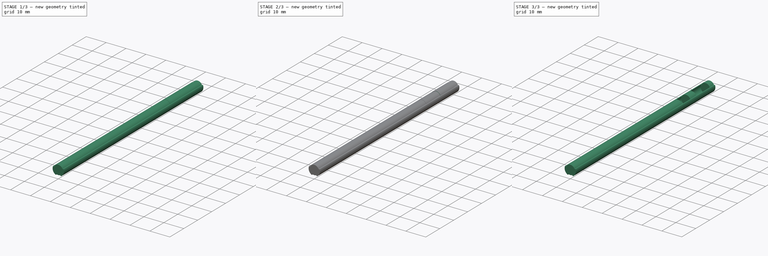
[diagram: build sequence overview — one tinted view per stage of 3, left to right]
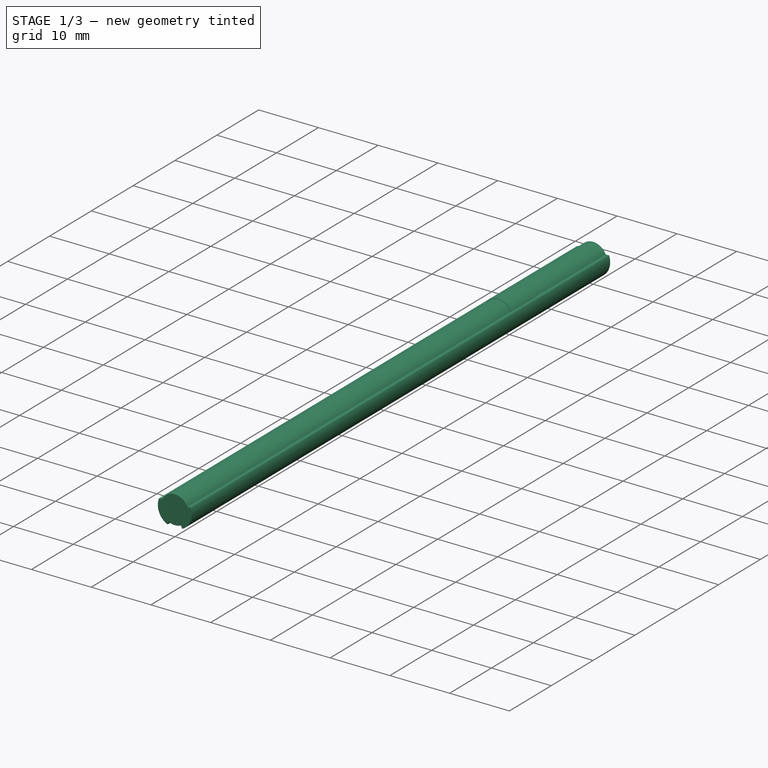
[diagram: stage 1 of 3 — iso view after this stage's code; geometry added in this stage tinted green]
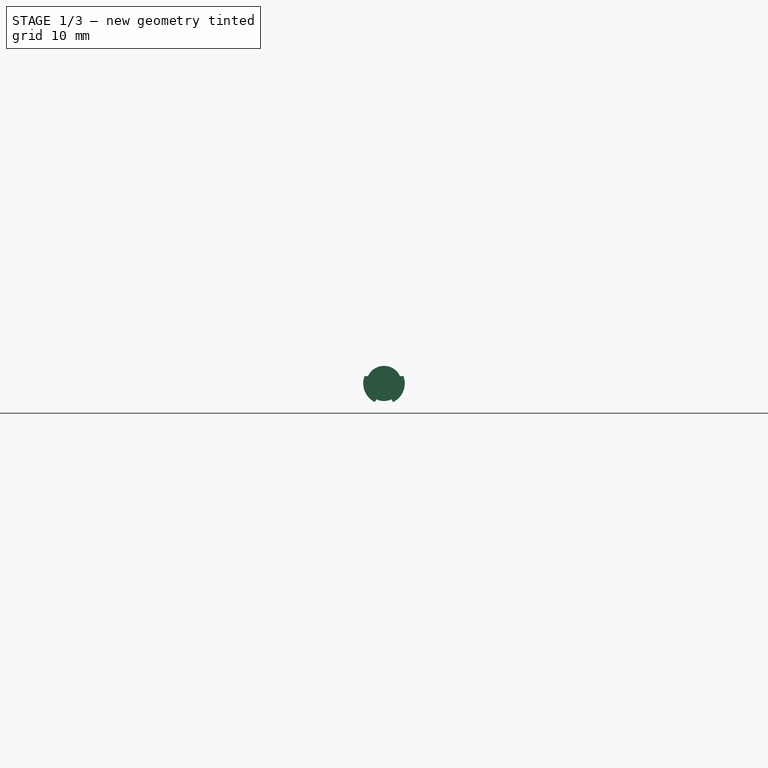
[diagram: stage 1 of 3 — front view after this stage's code; geometry added in this stage tinted green]
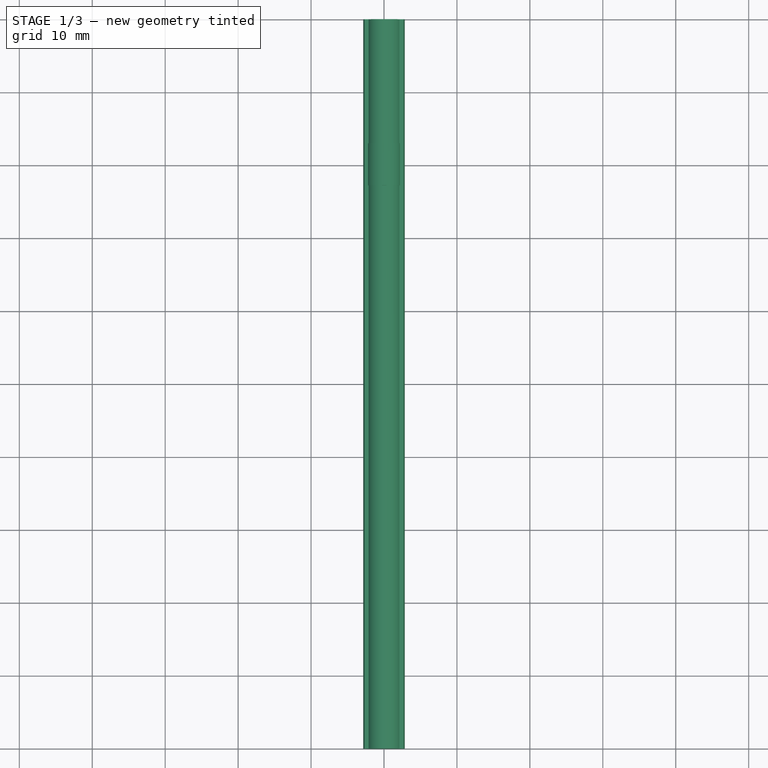
[diagram: stage 1 of 3 — top view after this stage's code; geometry added in this stage tinted green]
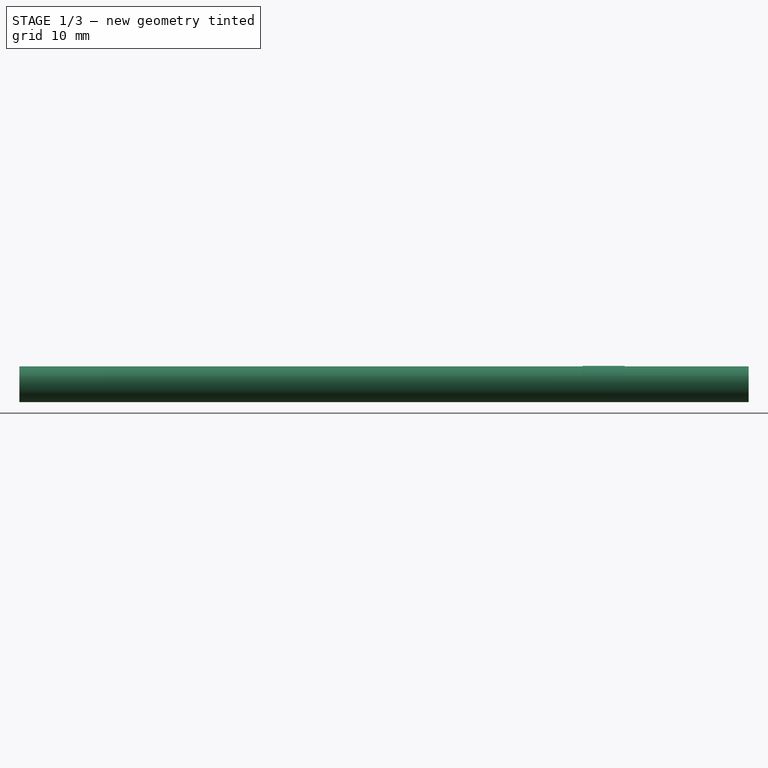
[diagram: stage 1 of 3 — right view after this stage's code; geometry added in this stage tinted green]
FCSTD DOCUMENT  (FreeCAD 1.0R39285 (Git))
Label: Pin
License: All rights reserved
LicenseURL: https://en.wikipedia.org/wiki/All_rights_reserved
objects: Part::Cylinder×2, Part::Cut×2, Sketcher::SketchObject×1, PartDesign::Pad×1, PartDesign::Body×1
note: 10 computed .brp shape members not serialized (recipe doc carries the construction recipe); baked Part::Feature solids carry a one-line shape summary decoded from their .brp

FEATURE [Sketcher::SketchObject] Sketch
  ArcFitTolerance = 1e-06
  AttachmentSupport = -> [XZ_Plane]
  FullyConstrained = true
  MakeInternals = false
  MapMode = 5
  Placement = pos=(0,0,0) rot=(1,0,0;1.5708rad)
  sketch-geometry (13):
    g0: ArcOfCircle CenterX=0 CenterY=0 CenterZ=0 NormalX=0 NormalY=0 NormalZ=1 AngleXU=0 Radius=2.3368 StartAngle=0.446014 EndAngle=2.69558
    g1: Circle [constr] CenterX=0 CenterY=0 CenterZ=0 NormalX=0 NormalY=0 NormalZ=1 AngleXU=0 Radius=2.3368
    g2: Circle [constr] CenterX=0 CenterY=0 CenterZ=0 NormalX=0 NormalY=0 NormalZ=1 AngleXU=0 Radius=2.8448
    g3: ArcOfCircle CenterX=0 CenterY=0 CenterZ=0 NormalX=0 NormalY=0 NormalZ=1 AngleXU=0 Radius=2.8448 StartAngle=5.16219 EndAngle=6.6454
    g4: ArcOfCircle CenterX=0 CenterY=0 CenterZ=0 NormalX=0 NormalY=0 NormalZ=1 AngleXU=0 Radius=2.8448 StartAngle=2.77938 EndAngle=4.26259
    g5: ArcOfCircle CenterX=0 CenterY=0 CenterZ=0 NormalX=0 NormalY=0 NormalZ=1 AngleXU=0 Radius=2.3368 StartAngle=4.26259 EndAngle=5.16219
    g6: LineSegment StartX=-2.66022 StartY=1.00803 StartZ=0 EndX=-2.1082 EndY=1.00803 EndZ=0
    g7: LineSegment StartX=-1.016 StartY=-2.10437 StartZ=0 EndX=-1.23687 EndY=-2.56184 EndZ=0
    g8: LineSegment StartX=1.23687 StartY=-2.56184 StartZ=0 EndX=1.016 EndY=-2.10437 EndZ=0
    g9: LineSegment StartX=2.66022 StartY=1.00803 StartZ=0 EndX=2.1082 EndY=1.00803 EndZ=0
    g10: LineSegment [constr] StartX=-1.016 StartY=-2.10437 StartZ=0 EndX=1.016 EndY=-2.10437 EndZ=0
    g11: LineSegment [constr] StartX=-2.1082 StartY=1.00803 StartZ=0 EndX=2.1082 EndY=1.00803 EndZ=0
    g12: GeomPoint [constr] X=2.3368 Y=0 Z=0
  constraints (34):
    c: Coincident(g0,g-1)
    c: Radius(g0) = 2.3368
    c: Coincident(g1,g0)
    c: Equal(g1,g0)
    c: Coincident(g2,g0)
    c: Radius(g2) = 2.8448
    c: Coincident(g3,g0)
    c: PointOnObject(g3,g2)
    c: Coincident(g4,g0)
    c: PointOnObject(g4,g2)
    c: PointOnObject(g7,g1)
    c: Coincident(g5,g0)
    c: Coincident(g6,g4)
    c: Coincident(g6,g0)
    c: Coincident(g7,g4)
    c: Coincident(g8,g3)
    c: Coincident(g8,g5)
    c: Coincident(g9,g3)
    c: Coincident(g9,g0)
    c: Horizontal(g9)
    c: Horizontal(g6)
    c: Coincident(g5,g7)
    c: Perpendicular(g5,g8)
    c: Perpendicular(g5,g7)
    c: Coincident(g10,g5)
    c: Coincident(g10,g5)
    c: Horizontal(g10)
    c: Coincident(g11,g0)
    c: Coincident(g11,g0)
    c: Horizontal(g11)
    c: PointOnObject(g12,g-1)
    c: PointOnObject(g12,g1)
    c: DistanceX(g10,g10) = 2.032
    c: DistanceX(g0,g12) = 0.2286
FEATURE [PartDesign::Pad] Pad
  Direction = (0,-1,2e-16)
  Length = 100
  Length2 = 10
  Placement = pos=(0,0,0) rot=(1,0,0;1.5708rad)
  Profile = -> Sketch
  ReferenceAxis = -> Sketch [N_Axis]
  Refine = true
  Suppressed = false
  Type = 0
FEATURE [Part::Cylinder] Cylinder001
  Angle = 360
  AttacherType = Attacher::AttachEngine3D
  FirstAngle = 0
  Height = 5.78
  Placement = pos=(0,-17,0) rot=(1,0,0;1.5708rad)
  Radius = 2.413
  SecondAngle = 0
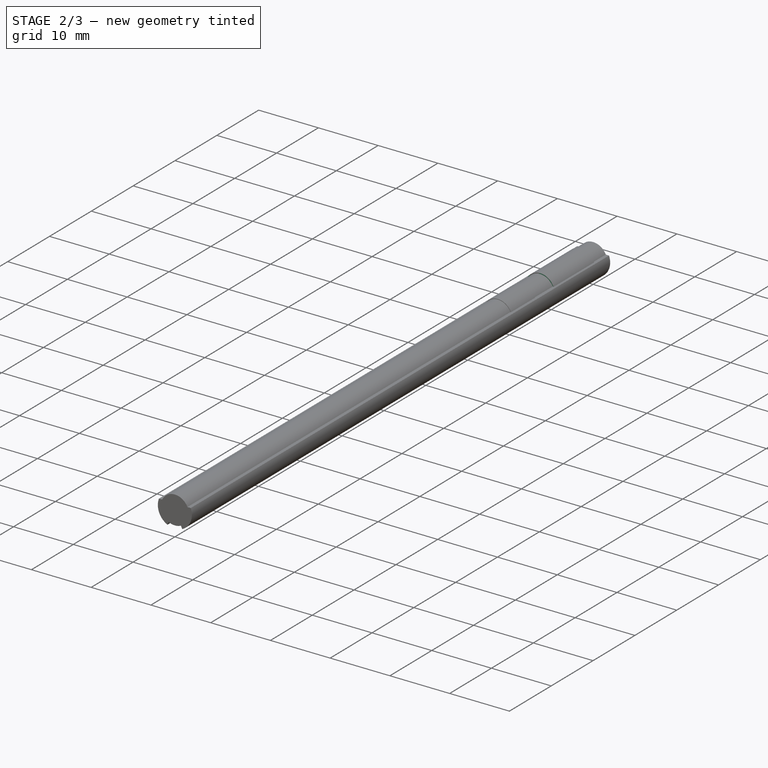
[diagram: stage 2 of 3 — iso view after this stage's code; geometry added in this stage tinted green]
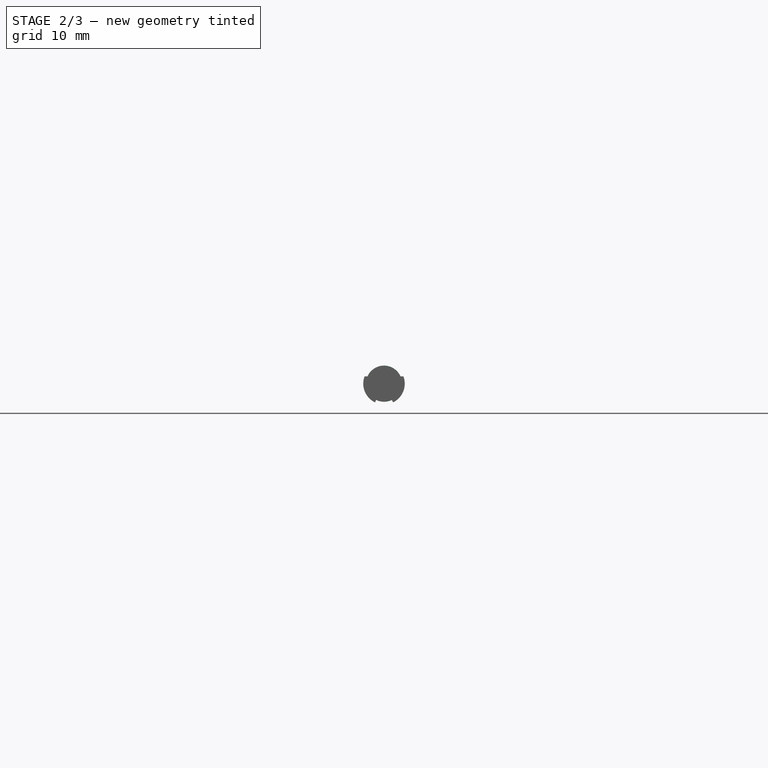
[diagram: stage 2 of 3 — front view after this stage's code; geometry added in this stage tinted green]
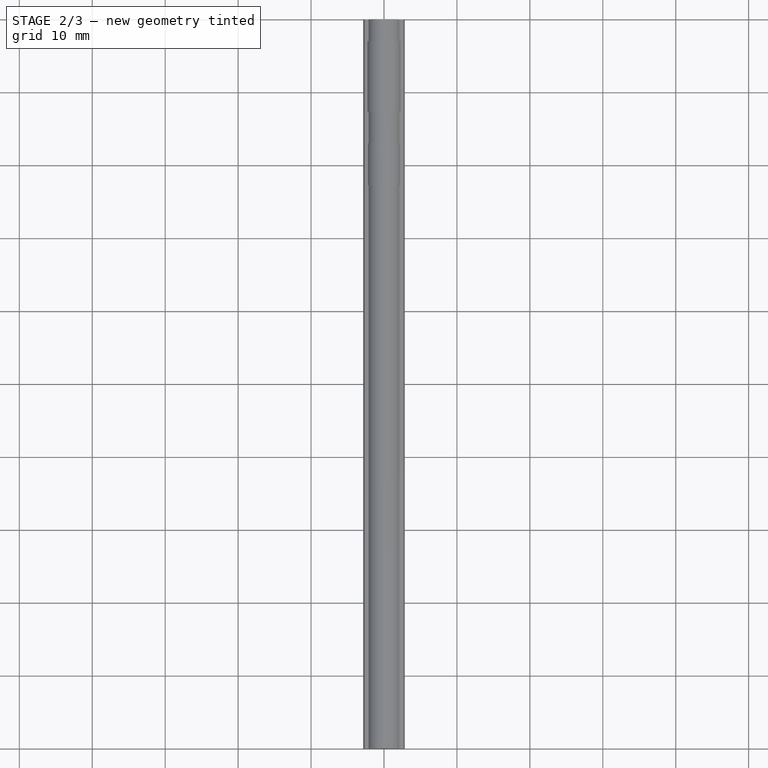
[diagram: stage 2 of 3 — top view after this stage's code; geometry added in this stage tinted green]
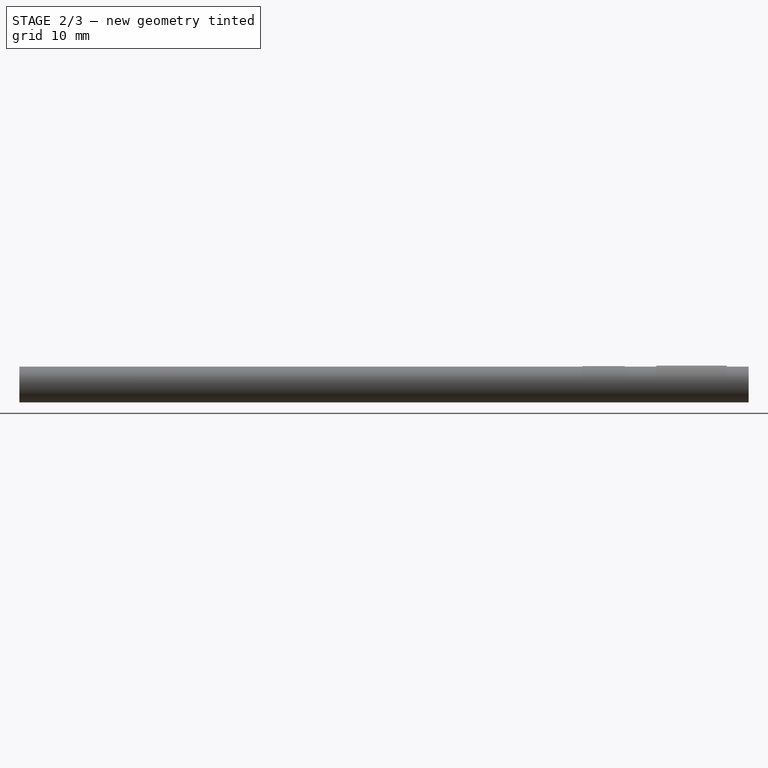
[diagram: stage 2 of 3 — right view after this stage's code; geometry added in this stage tinted green]
FEATURE [Part::Cylinder] Cylinder
  Angle = 360
  AttacherType = Attacher::AttachEngine3D
  FirstAngle = 0
  Height = 9.67
  Placement = pos=(0,-3,0) rot=(1,0,0;1.5708rad)
  Radius = 2.4765
  SecondAngle = 0
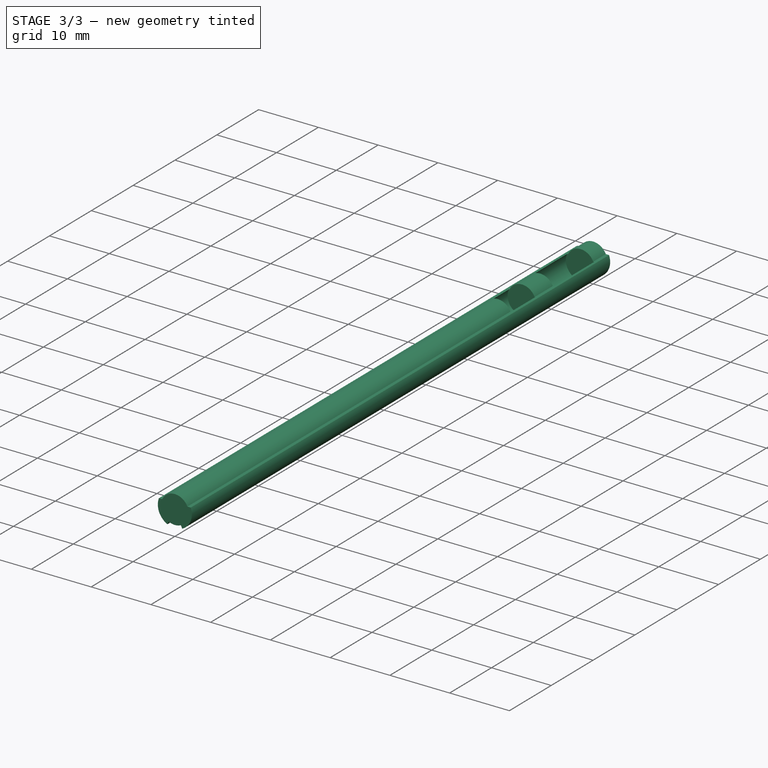
[diagram: stage 3 of 3 — iso view after this stage's code; geometry added in this stage tinted green]
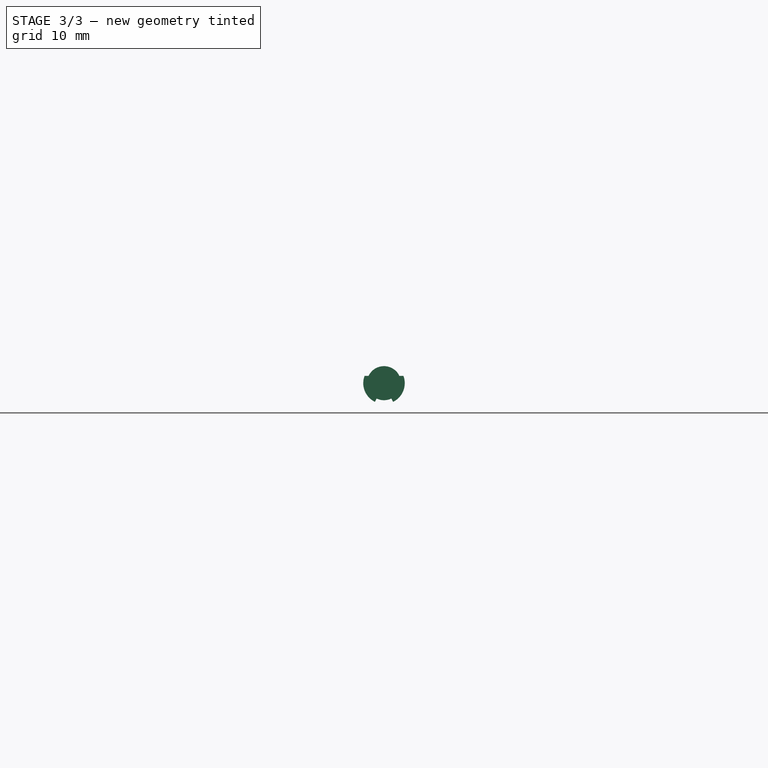
[diagram: stage 3 of 3 — front view after this stage's code; geometry added in this stage tinted green]
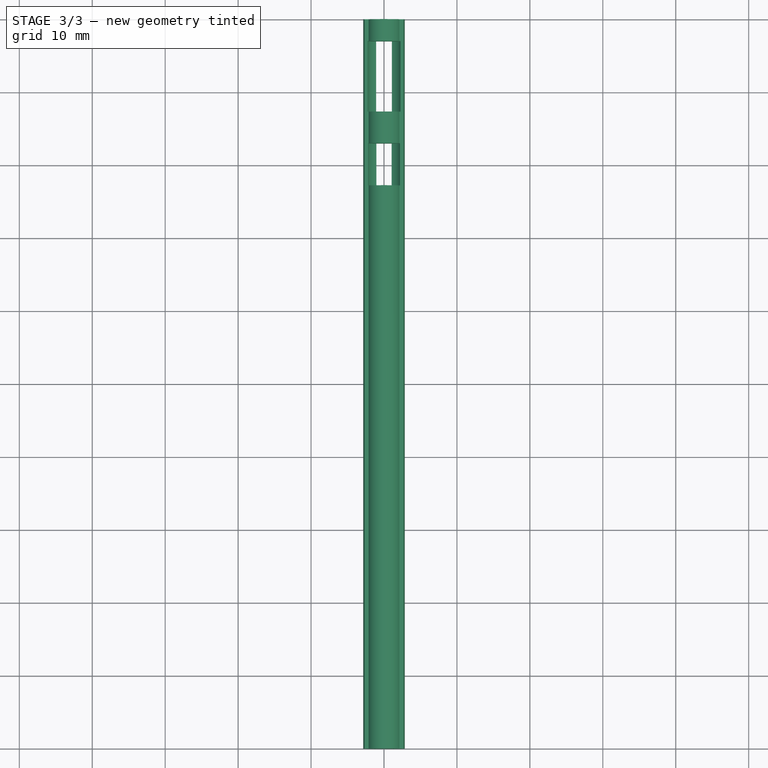
[diagram: stage 3 of 3 — top view after this stage's code; geometry added in this stage tinted green]
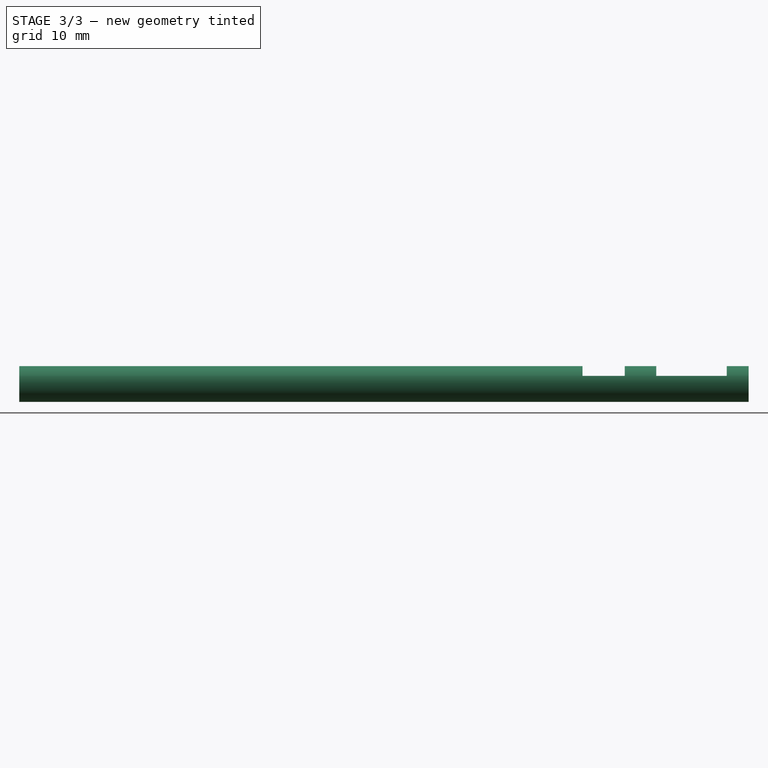
[diagram: stage 3 of 3 — right view after this stage's code; geometry added in this stage tinted green]
FEATURE [PartDesign::Body] Body
  AllowCompound = false
  Group = -> [Sketch,Pad]
  Origin = -> Origin
  Tip = -> Pad
FEATURE [Part::Cut] Cut
  Base = -> Body
  Refine = true
  Tool = -> Cylinder
FEATURE [Part::Cut] Cut001
  Base = -> Cut
  Refine = true
  Tool = -> Cylinder001
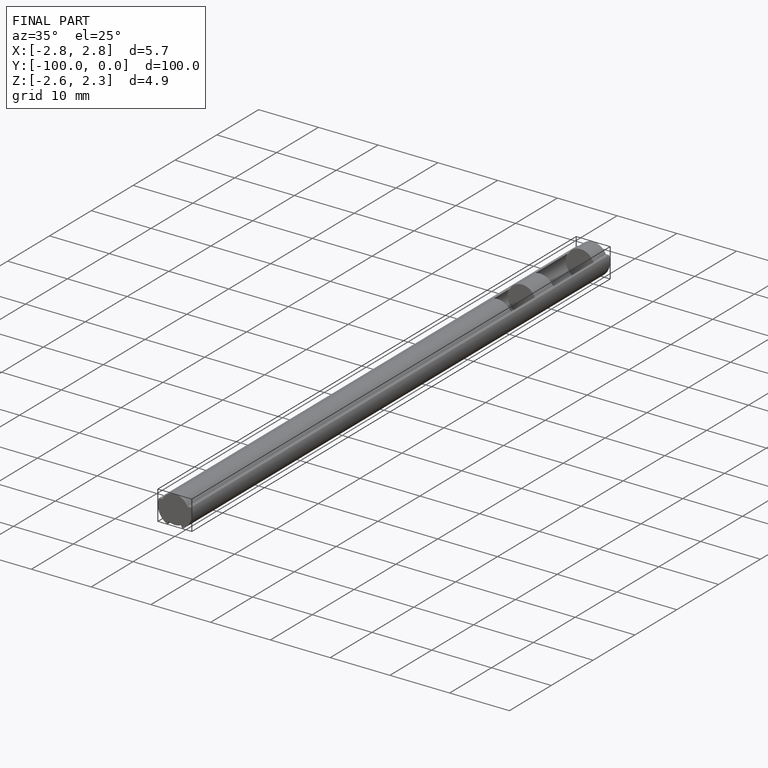
[diagram: finished part — iso view with bounding-box wireframe]
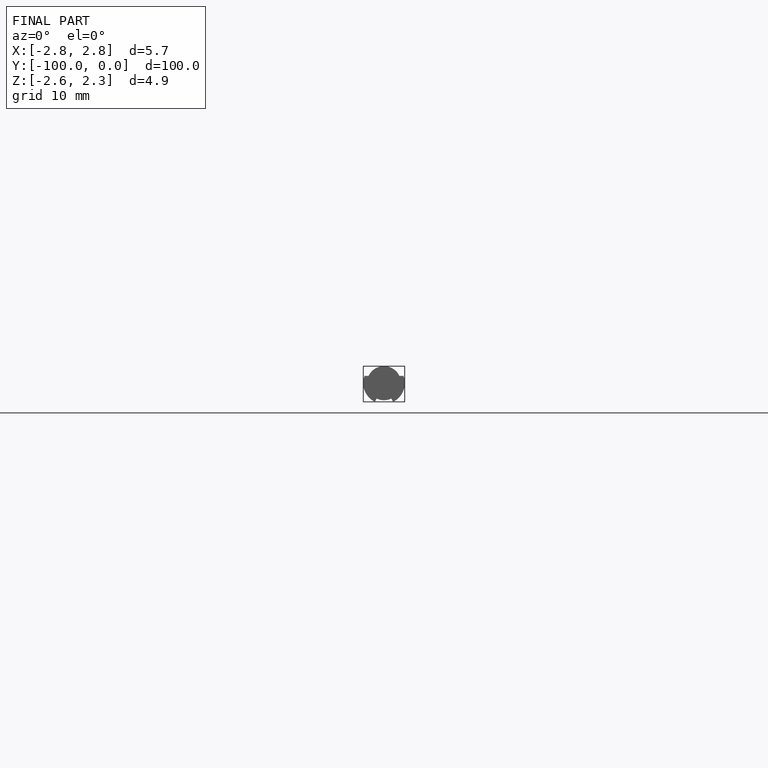
[diagram: finished part — front view with bounding-box wireframe]
